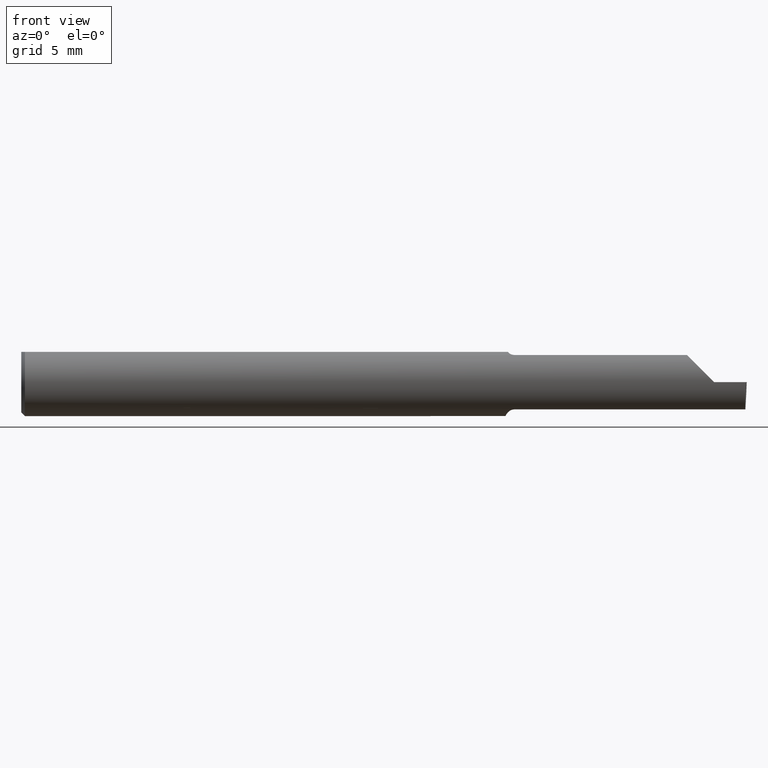
[diagram: clean part render]
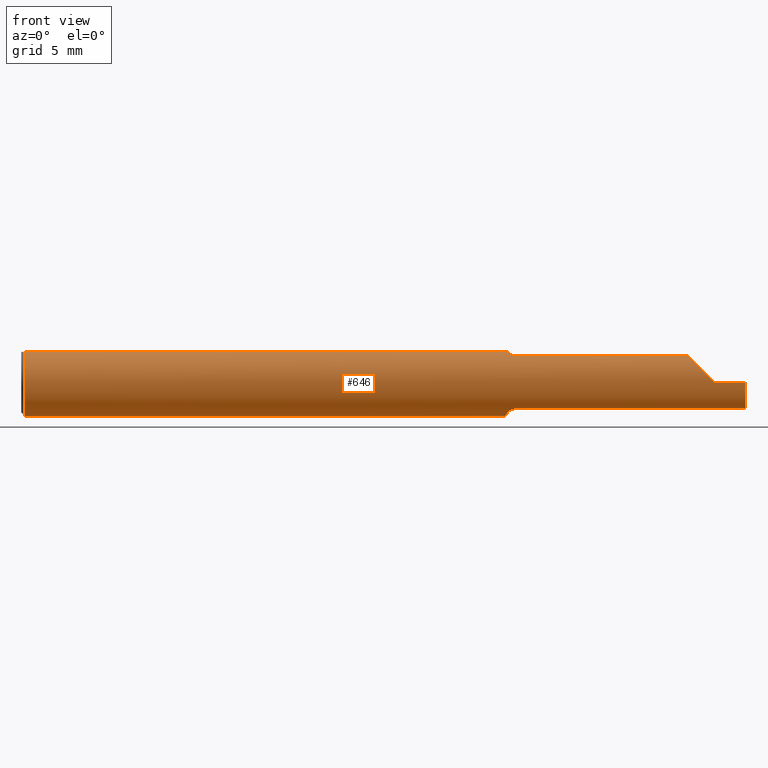
[diagram: same view with one face highlighted and labeled with its STEP entity id]
A machine part, front view. The second image highlights one B-rep face of the part: STEP entity #646.
In plain terms, the highlighted cylindrical surface (edge-blend (fillet) strip) has radius 2.3774 mm, axis along (-1, -0, -0).
Its self-contained STEP definition (entity closure, byte-faithful):
#5 = ORIENTED_EDGE ( 'NONE', *, *, #717, .F. ) ;
#8 = CARTESIAN_POINT ( 'NONE',  ( 1.338953896433695556, -0.03733827064844362498, -0.08603332211978831356 ) ) ;
#9 = DIRECTION ( 'NONE',  ( 0.000000000000000000, 0.000000000000000000, -1.000000000000000000 ) ) ;
#45 = CARTESIAN_POINT ( 'NONE',  ( 1.341129652885479251, -0.04209513035970115225, 0.08359999999999991049 ) ) ;
#47 = EDGE_CURVE ( 'NONE', #463, #418, #454, .T. ) ;
#61 = CARTESIAN_POINT ( 'NONE',  ( 1.337415450430337494, -0.03151229630690480926, -0.08835846806355290850 ) ) ;
#64 = CARTESIAN_POINT ( 'NONE',  ( 1.341356684838558522, -0.04260000000000006143, -0.08334386600104411180 ) ) ;
#70 = CARTESIAN_POINT ( 'NONE',  ( 1.836620632051321200, -0.05810704225352100044, 0.07337936794867835899 ) ) ;
#85 = EDGE_CURVE ( 'NONE', #537, #549, #490, .T. ) ;
#86 = B_SPLINE_CURVE_WITH_KNOTS ( 'NONE', 3,
 ( #553, #615, #116, #301, #368, #754, #242, #64 ),
 .UNSPECIFIED., .F., .F.,
 ( 4, 2, 2, 4 ),
 ( 1.968126669309073504E-07, 0.0001761966947278581865, 0.0003521965767887855030, 0.0007041963409106265833 ),
 .UNSPECIFIED. ) ;
#93 = ORIENTED_EDGE ( 'NONE', *, *, #489, .F. ) ;
#99 = EDGE_CURVE ( 'NONE', #418, #604, #631, .T. ) ;
#100 = CIRCLE ( 'NONE', #205, 0.09360000000000001652 ) ;
#102 = CARTESIAN_POINT ( 'NONE',  ( 1.910000000000000142, -0.09360000000000005815, 1.102182119232621301E-17 ) ) ;
#105 = CARTESIAN_POINT ( 'NONE',  ( 0.000000000000000000, 0.04209513035969864037, 0.08359999999999988274 ) ) ;
#114 = DIRECTION ( 'NONE',  ( -1.000000000000000000, -0.000000000000000000, -0.000000000000000000 ) ) ;
#116 = CARTESIAN_POINT ( 'NONE',  ( 1.355389671955115727, -0.05750350940205783967, -0.07386306649500078148 ) ) ;
#120 = VECTOR ( 'NONE', #432, 39.37007874015748143 ) ;
#125 = EDGE_CURVE ( 'NONE', #485, #369, #100, .T. ) ;
#127 = CARTESIAN_POINT ( 'NONE',  ( 1.854690286057536941, -0.08092595952420821026, 0.05530971394246249340 ) ) ;
#144 = VERTEX_POINT ( 'NONE', #419 ) ;
#152 = CARTESIAN_POINT ( 'NONE',  ( 1.341356684838558522, -0.04260000000000008225, 0.08334386600104411180 ) ) ;
#156 = EDGE_CURVE ( 'NONE', #485, #144, #613, .T. ) ;
#162 = CARTESIAN_POINT ( 'NONE',  ( 1.996942494641693600, -0.09360000000000001652, 0.000000000000000000 ) ) ;
#168 = ORIENTED_EDGE ( 'NONE', *, *, #209, .F. ) ;
#172 = CARTESIAN_POINT ( 'NONE',  ( 0.000000000000000000, 0.000000000000000000, 0.000000000000000000 ) ) ;
#181 = LINE ( 'NONE', #190, #120 ) ;
#190 = CARTESIAN_POINT ( 'NONE',  ( 1.671240805000000051, -0.05810704225352111146, 0.07337936794867830348 ) ) ;
#205 = AXIS2_PLACEMENT_3D ( 'NONE', #564, #234, #9 ) ;
#209 = EDGE_CURVE ( 'NONE', #318, #211, #579, .T. ) ;
#211 = VERTEX_POINT ( 'NONE', #641 ) ;
#224 = ORIENTED_EDGE ( 'NONE', *, *, #683, .F. ) ;
#231 = DIRECTION ( 'NONE',  ( 0.000000000000000000, 0.000000000000000000, -1.000000000000000000 ) ) ;
#234 = DIRECTION ( 'NONE',  ( 1.000000000000000000, 0.000000000000000000, 0.000000000000000000 ) ) ;
#237 = ORIENTED_EDGE ( 'NONE', *, *, #99, .T. ) ;
#239 = LINE ( 'NONE', #291, #759 ) ;
#242 = CARTESIAN_POINT ( 'NONE',  ( 1.343086474849918721, -0.04638796853538173365, -0.08140770120152260314 ) ) ;
#246 = EDGE_LOOP ( 'NONE', ( #224, #526, #237, #616, #682, #168, #534, #335, #269, #442, #359, #5, #398, #93 ) ) ;
#254 = CARTESIAN_POINT ( 'NONE',  ( 2.999519565323742037E-32, -0.09359999999999998876, 2.449293598294716768E-16 ) ) ;
#261 = CARTESIAN_POINT ( 'NONE',  ( 1.334999999999999742, 0.04209513035969864037, 0.08359999999999988274 ) ) ;
#269 = ORIENTED_EDGE ( 'NONE', *, *, #125, .T. ) ;
#271 = CARTESIAN_POINT ( 'NONE',  ( 1.351469028275930739, -0.05559939362423890752, 0.07530665289274073027 ) ) ;
#283 = VERTEX_POINT ( 'NONE', #577 ) ;
#291 = CARTESIAN_POINT ( 'NONE',  ( 1.671240805000000051, -0.05810704225352111146, -0.07337936794867830348 ) ) ;
#295 = CARTESIAN_POINT ( 'NONE',  ( 1.334999999999999742, 0.000000000000000000, 0.000000000000000000 ) ) ;
#296 = EDGE_CURVE ( 'NONE', #369, #549, #343, .T. ) ;
#297 = CARTESIAN_POINT ( 'NONE',  ( 1.334999999999999742, -0.006757276995305315156, -0.09335576686851604356 ) ) ;
#301 = CARTESIAN_POINT ( 'NONE',  ( 1.351446782524423851, -0.05558685324519224702, -0.07531605361338927773 ) ) ;
#306 = CARTESIAN_POINT ( 'NONE',  ( 1.994999172194938941, -0.05810704225352111146, -0.07337936794867830348 ) ) ;
#310 = CARTESIAN_POINT ( 'NONE',  ( 1.359999999999999654, -0.05810704225352111146, -0.07337936794867830348 ) ) ;
#314 = EDGE_CURVE ( 'NONE', #144, #318, #465, .T. ) ;
#316 = CARTESIAN_POINT ( 'NONE',  ( 1.994999172194938941, -0.05810704225352111146, -0.07337936794867830348 ) ) ;
#318 = VERTEX_POINT ( 'NONE', #659 ) ;
#335 = ORIENTED_EDGE ( 'NONE', *, *, #156, .F. ) ;
#343 = CIRCLE ( 'NONE', #525, 0.09360000000000001652 ) ;
#355 = DIRECTION ( 'NONE',  ( -1.000000000000000000, -0.000000000000000000, -0.000000000000000000 ) ) ;
#359 = ORIENTED_EDGE ( 'NONE', *, *, #85, .F. ) ;
#360 = DIRECTION ( 'NONE',  ( 1.000000000000000000, 0.000000000000000000, 0.000000000000000000 ) ) ;
#361 = CYLINDRICAL_SURFACE ( 'NONE', #798, 0.09360000000000001652 ) ;
#362 = CARTESIAN_POINT ( 'NONE',  ( 1.335436655799339345, -0.01945041057485648317, -0.09177104786119409663 ) ) ;
#368 = CARTESIAN_POINT ( 'NONE',  ( 1.349728336617689095, -0.05428341532129033614, -0.07627162539867103630 ) ) ;
#369 = VERTEX_POINT ( 'NONE', #474 ) ;
#371 = CARTESIAN_POINT ( 'NONE',  ( 1.910000000000000142, -0.09360000000000005815, 1.102182119232621301E-17 ) ) ;
#375 = CARTESIAN_POINT ( 'NONE',  ( 1.341356684838558522, -0.04260000000000006143, -0.08334386600104411180 ) ) ;
#378 = CARTESIAN_POINT ( 'NONE',  ( 1.995925902212489333, -0.09359999999999997489, -0.02910696448121682239 ) ) ;
#386 = CARTESIAN_POINT ( 'NONE',  ( 0.009999999999999877043, 0.04209513035969864037, 0.08359999999999988274 ) ) ;
#398 = ORIENTED_EDGE ( 'NONE', *, *, #510, .F. ) ;
#399 = DIRECTION ( 'NONE',  ( 1.000000000000000000, 0.000000000000000000, 0.000000000000000000 ) ) ;
#411 = VECTOR ( 'NONE', #360, 39.37007874015748143 ) ;
#418 = VERTEX_POINT ( 'NONE', #162 ) ;
#419 = CARTESIAN_POINT ( 'NONE',  ( 1.341129652885479251, -0.04209513035970115225, 0.08359999999999991049 ) ) ;
#420 = DIRECTION ( 'NONE',  ( 0.000000000000000000, 0.000000000000000000, 1.000000000000000000 ) ) ;
#425 = CARTESIAN_POINT ( 'NONE',  ( 1.996942494641693600, -0.09360000000000001652, 0.000000000000000000 ) ) ;
#431 = AXIS2_PLACEMENT_3D ( 'NONE', #295, #491, #738 ) ;
#432 = DIRECTION ( 'NONE',  ( 1.000000000000000000, 0.000000000000000000, 0.000000000000000000 ) ) ;
#442 = ORIENTED_EDGE ( 'NONE', *, *, #296, .T. ) ;
#447 = VERTEX_POINT ( 'NONE', #310 ) ;
#454 =( BOUNDED_CURVE ( )  B_SPLINE_CURVE ( 3, ( #316, #547, #378, #425 ),
 .UNSPECIFIED., .F., .T. ) 
 B_SPLINE_CURVE_WITH_KNOTS ( ( 4, 4 ),
 ( 0.2063001339125313249, 1.107331509589561058 ),
 .UNSPECIFIED. ) 
 CURVE ( )  GEOMETRIC_REPRESENTATION_ITEM ( )  RATIONAL_B_SPLINE_CURVE ( ( 1.000000000000000000, 0.9334817841311873199, 0.9334817841311873199, 1.000000000000000000 ) ) 
 REPRESENTATION_ITEM ( '' )  );
#456 = VECTOR ( 'NONE', #684, 39.37007874015748143 ) ;
#460 = CARTESIAN_POINT ( 'NONE',  ( 1.343098441794897679, -0.04641417426599069723, 0.08139430652501544738 ) ) ;
#463 = VERTEX_POINT ( 'NONE', #306 ) ;
#465 = B_SPLINE_CURVE_WITH_KNOTS ( 'NONE', 3,
 ( #45, #783, #528, #152 ),
 .UNSPECIFIED., .F., .F.,
 ( 4, 4 ),
 ( 4.741820243533449935E-07, 1.584523690453674738E-05 ),
 .UNSPECIFIED. ) ;
#474 = CARTESIAN_POINT ( 'NONE',  ( 0.009999999999999877043, 0.000000000000000000, -0.09360000000000001652 ) ) ;
#483 = FACE_OUTER_BOUND ( 'NONE', #246, .T. ) ;
#485 = VERTEX_POINT ( 'NONE', #750 ) ;
#489 = EDGE_CURVE ( 'NONE', #447, #781, #86, .T. ) ;
#490 = LINE ( 'NONE', #105, #556 ) ;
#491 = DIRECTION ( 'NONE',  ( 1.000000000000000000, 0.000000000000000000, 0.000000000000000000 ) ) ;
#497 = CARTESIAN_POINT ( 'NONE',  ( 1.334999999999999520, -0.01308640439514279462, -0.09289765197734374536 ) ) ;
#500 = B_SPLINE_CURVE_WITH_KNOTS ( 'NONE', 3,
 ( #375, #8, #61, #362, #497, #297 ),
 .UNSPECIFIED., .F., .F.,
 ( 4, 2, 4 ),
 ( 0.0007041963409106265833, 0.001193146413573848092, 0.001682096486237069600 ),
 .UNSPECIFIED. ) ;
#504 = CARTESIAN_POINT ( 'NONE',  ( 1.334999999999999742, -0.006757276995305315156, -0.09335576686851604356 ) ) ;
#508 = VERTEX_POINT ( 'NONE', #504 ) ;
#510 = EDGE_CURVE ( 'NONE', #781, #508, #500, .T. ) ;
#513 = EDGE_CURVE ( 'NONE', #211, #283, #181, .T. ) ;
#517 = EDGE_CURVE ( 'NONE', #604, #283, #595, .T. ) ;
#518 = CARTESIAN_POINT ( 'NONE',  ( 1.349746577633804012, -0.05429945193459805031, 0.07626038032150810053 ) ) ;
#521 = CARTESIAN_POINT ( 'NONE',  ( 1.345259025420519006, -0.04992838138009415838, 0.07925011723318652057 ) ) ;
#525 = AXIS2_PLACEMENT_3D ( 'NONE', #719, #399, #231 ) ;
#526 = ORIENTED_EDGE ( 'NONE', *, *, #47, .T. ) ;
#528 = CARTESIAN_POINT ( 'NONE',  ( 1.341280153739604852, -0.04243240890922551911, 0.08342952773968853597 ) ) ;
#534 = ORIENTED_EDGE ( 'NONE', *, *, #314, .F. ) ;
#537 = VERTEX_POINT ( 'NONE', #261 ) ;
#547 = CARTESIAN_POINT ( 'NONE',  ( 1.995231968854677573, -0.08092595952420826577, -0.05530971394246245176 ) ) ;
#549 = VERTEX_POINT ( 'NONE', #386 ) ;
#553 = CARTESIAN_POINT ( 'NONE',  ( 1.359999999999999654, -0.05810704225352111146, -0.07337936794867830348 ) ) ;
#556 = VECTOR ( 'NONE', #355, 39.37007874015748143 ) ;
#564 = CARTESIAN_POINT ( 'NONE',  ( 0.009999999999999877043, 0.000000000000000000, 0.000000000000000000 ) ) ;
#577 = CARTESIAN_POINT ( 'NONE',  ( 1.836620632051321200, -0.05810704225352100044, 0.07337936794867835899 ) ) ;
#579 = B_SPLINE_CURVE_WITH_KNOTS ( 'NONE', 3,
 ( #589, #460, #521, #518, #271, #763, #760, #587 ),
 .UNSPECIFIED., .F., .F.,
 ( 4, 2, 2, 4 ),
 ( 1.584523690453674738E-05, 0.0003656721978374782162, 0.0005405856783039490352, 0.0007154991587704197459 ),
 .UNSPECIFIED. ) ;
#587 = CARTESIAN_POINT ( 'NONE',  ( 1.359999999999999654, -0.05810704225352111146, 0.07337936794867830348 ) ) ;
#589 = CARTESIAN_POINT ( 'NONE',  ( 1.341356684838558522, -0.04260000000000008225, 0.08334386600104411180 ) ) ;
#595 =( BOUNDED_CURVE ( )  B_SPLINE_CURVE ( 3, ( #371, #695, #127, #70 ),
 .UNSPECIFIED., .F., .T. ) 
 B_SPLINE_CURVE_WITH_KNOTS ( ( 4, 4 ),
 ( 4.712388980384689674, 5.613420356061720184 ),
 .UNSPECIFIED. ) 
 CURVE ( )  GEOMETRIC_REPRESENTATION_ITEM ( )  RATIONAL_B_SPLINE_CURVE ( ( 1.000000000000000000, 0.9334817841311873199, 0.9334817841311873199, 1.000000000000000000 ) ) 
 REPRESENTATION_ITEM ( '' )  );
#604 = VERTEX_POINT ( 'NONE', #102 ) ;
#613 = LINE ( 'NONE', #679, #411 ) ;
#615 = CARTESIAN_POINT ( 'NONE',  ( 1.357653034764491506, -0.05810704225352110452, -0.07337936794867828960 ) ) ;
#616 = ORIENTED_EDGE ( 'NONE', *, *, #517, .T. ) ;
#622 = DIRECTION ( 'NONE',  ( -1.000000000000000000, -0.000000000000000000, -0.000000000000000000 ) ) ;
#631 = LINE ( 'NONE', #254, #456 ) ;
#635 = CARTESIAN_POINT ( 'NONE',  ( 1.341356684838558522, -0.04260000000000006143, -0.08334386600104411180 ) ) ;
#641 = CARTESIAN_POINT ( 'NONE',  ( 1.359999999999999654, -0.05810704225352111146, 0.07337936794867830348 ) ) ;
#646 = ADVANCED_FACE ( 'NONE', ( #483 ), #361, .T. ) ;
#659 = CARTESIAN_POINT ( 'NONE',  ( 1.341356684838558522, -0.04260000000000008225, 0.08334386600104411180 ) ) ;
#679 = CARTESIAN_POINT ( 'NONE',  ( 0.000000000000000000, -0.04209513035969864037, 0.08359999999999988274 ) ) ;
#682 = ORIENTED_EDGE ( 'NONE', *, *, #513, .F. ) ;
#683 = EDGE_CURVE ( 'NONE', #463, #447, #239, .T. ) ;
#684 = DIRECTION ( 'NONE',  ( -1.000000000000000000, -0.000000000000000000, -0.000000000000000000 ) ) ;
#695 = CARTESIAN_POINT ( 'NONE',  ( 1.880893035518782730, -0.09359999999999997489, 0.02910696448121682239 ) ) ;
#717 = EDGE_CURVE ( 'NONE', #508, #537, #784, .T. ) ;
#719 = CARTESIAN_POINT ( 'NONE',  ( 0.009999999999999877043, 0.000000000000000000, 0.000000000000000000 ) ) ;
#738 = DIRECTION ( 'NONE',  ( 0.000000000000000000, 0.000000000000000000, -1.000000000000000000 ) ) ;
#750 = CARTESIAN_POINT ( 'NONE',  ( 0.009999999999999877043, -0.04209513035969864037, 0.08359999999999988274 ) ) ;
#754 = CARTESIAN_POINT ( 'NONE',  ( 1.345264545693808822, -0.04993027844100255547, -0.07924826417278518775 ) ) ;
#759 = VECTOR ( 'NONE', #114, 39.37007874015748143 ) ;
#760 = CARTESIAN_POINT ( 'NONE',  ( 1.357655343791670299, -0.05810704225352107677, 0.07337936794867830348 ) ) ;
#763 = CARTESIAN_POINT ( 'NONE',  ( 1.355389214148234212, -0.05750155061631025133, 0.07386444488392709951 ) ) ;
#781 = VERTEX_POINT ( 'NONE', #635 ) ;
#783 = CARTESIAN_POINT ( 'NONE',  ( 1.341204482410373933, -0.04226411763296344937, 0.08351490979309542095 ) ) ;
#784 = CIRCLE ( 'NONE', #431, 0.09360000000000001652 ) ;
#798 = AXIS2_PLACEMENT_3D ( 'NONE', #172, #622, #420 ) ;